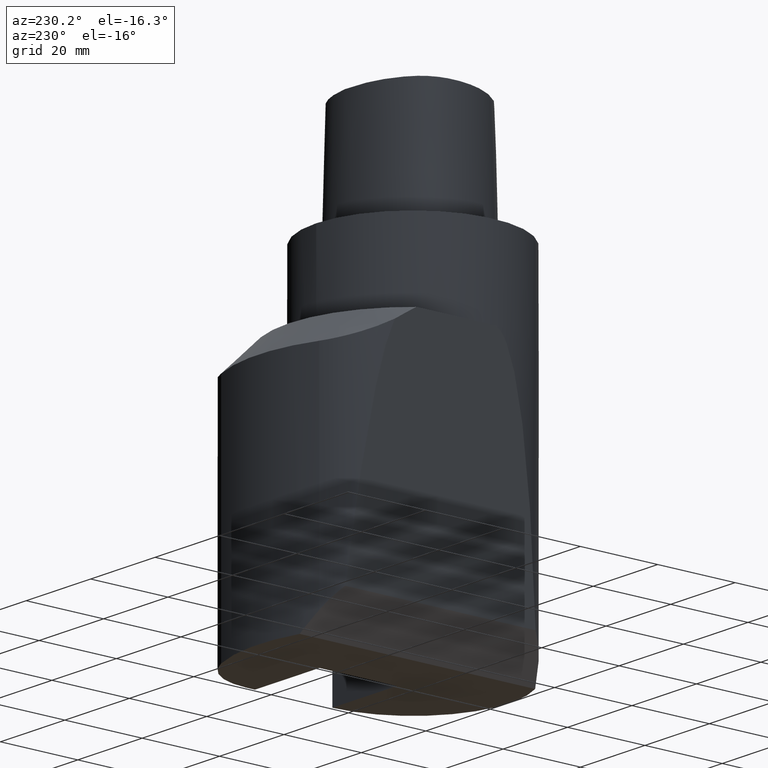
[diagram: clean part render]
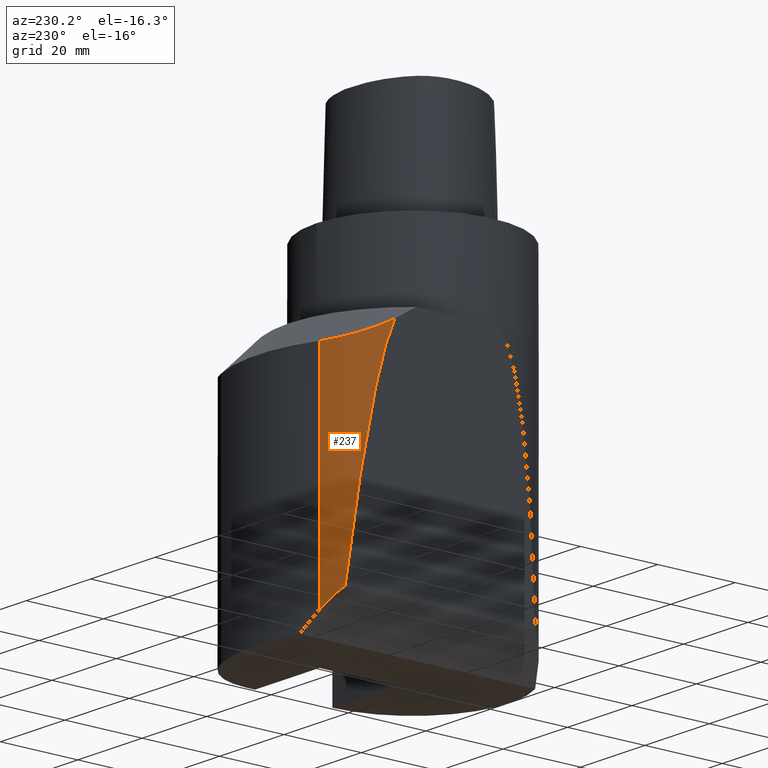
[diagram: same view with one face highlighted and labeled with its STEP entity id]
A machine part, auxiliary view. The second image highlights one B-rep face of the part: STEP entity #237.
In plain terms, the highlighted cylindrical surface (partial cylindrical patch) has radius 16 mm, axis along (-0, 0, 1).
Its self-contained STEP definition (entity closure, byte-faithful):
#95=EDGE_CURVE('240[2]',#263,#264,#265,.T.);
#105=EDGE_CURVE('240[2]',#280,#264,#281,.T.);
#107=EDGE_CURVE('240[2]',#283,#263,#284,.T.);
#164=EDGE_CURVE('240[2]',#302,#366,#367,.T.);
#177=EDGE_CURVE('240[2]',#302,#280,#381,.T.);
#179=EDGE_CURVE('240[2]',#366,#283,#383,.T.);
#237=ADVANCED_FACE('240[2]',(#455),#456,.T.);
#263=VERTEX_POINT('',#475);
#264=VERTEX_POINT('',#476);
#265=LINE('',#477,#478);
#280=VERTEX_POINT('',#497);
#281=ELLIPSE('',#498,22.6274169979687,16.0);
#283=VERTEX_POINT('',#501);
#284=B_SPLINE_CURVE_WITH_KNOTS('',3,(#502,#503,#504,#505,#506,#507),.UNSPECIFIED.,.F.,.F.,(4,2,4),(70.7762130526384,72.555052034394,74.3915191207835),.UNSPECIFIED.);
#302=VERTEX_POINT('',#530);
#366=VERTEX_POINT('',#1118);
#367=LINE('',#1119,#1120);
#381=ELLIPSE('',#1143,183.579411930711,16.0);
#383=B_SPLINE_CURVE_WITH_KNOTS('',3,(#1146,#1147,#1148,#1149,#1150,#1151,#1152,#1153,#1154,#1155,#1156,#1157,#1158,#1159,#1160,#1161),.UNSPECIFIED.,.F.,.F.,(4,3,3,3,3,4),(7.46103710837629,9.74245633401,12.98994177868,15.625256499881,17.4879813303236,19.5629506942959),.UNSPECIFIED.);
#455=FACE_OUTER_BOUND('',#1316,.T.);
#456=CYLINDRICAL_SURFACE('',#1317,16.0);
#475=CARTESIAN_POINT('',(-15.2871730443346,36.9635271627627,-30.0000000000007));
#476=CARTESIAN_POINT('',(-15.287173044864,36.9635271625363,-85.712827113867));
#477=CARTESIAN_POINT('',(-15.287173044864,36.9635271625363,-30.0000000000007));
#478=VECTOR('',#1341,55.7128271138663);
#497=CARTESIAN_POINT('',(-19.8226529999562,34.0331936345336,-81.1773471587751));
#498=AXIS2_PLACEMENT_3D('',#1363,#1364,#1365);
#501=CARTESIAN_POINT('',(-18.5610370443747,35.0785978115278,-29.6865231607127));
#502=CARTESIAN_POINT('',(-18.5610370443747,35.0785978115278,-29.6865231607127));
#503=CARTESIAN_POINT('',(-18.0560013708339,35.4549628842513,-29.7830699383902));
#504=CARTESIAN_POINT('',(-17.5273226016942,35.8025295693035,-29.8577587793696));
#505=CARTESIAN_POINT('',(-16.4277796324231,36.4362664279085,-29.963242269546));
#506=CARTESIAN_POINT('',(-15.8560971737018,36.7200721958078,-29.9925327724046));
#507=CARTESIAN_POINT('',(-15.2871730443339,36.963527162763,-29.9999999999993));
#530=CARTESIAN_POINT('',(-24.7022320764097,25.3068946513365,-25.4035030994543));
#1118=CARTESIAN_POINT('',(-24.7022320764097,25.3068946513365,-25.36437736552));
#1119=CARTESIAN_POINT('',(-24.7022320764097,25.3068946513365,-25.4035030994543));
#1120=VECTOR('',#1426,0.0391257339342976);
#1143=AXIS2_PLACEMENT_3D('',#1441,#1442,#1443);
#1146=CARTESIAN_POINT('',(-24.7022320764097,25.3068946513365,-25.36437736552));
#1147=CARTESIAN_POINT('',(-24.5675224778462,25.9994617537645,-25.7658857757129));
#1148=CARTESIAN_POINT('',(-24.3853392511311,26.690061634299,-26.1472100658409));
#1149=CARTESIAN_POINT('',(-24.1569628271251,27.3669572021426,-26.5035505058783));
#1150=CARTESIAN_POINT('',(-23.8318804816569,28.3304839750545,-27.0107831877838));
#1151=CARTESIAN_POINT('',(-23.4124036950951,29.2661572440483,-27.4672102775455));
#1152=CARTESIAN_POINT('',(-22.915753640416,30.1422947407211,-27.8640950921179));
#1153=CARTESIAN_POINT('',(-22.512725136461,30.8532749997913,-28.1861647094523));
#1154=CARTESIAN_POINT('',(-22.0325883463073,31.5711248067229,-28.4897294258993));
#1155=CARTESIAN_POINT('',(-21.4788803722163,32.2616177166732,-28.7576351154318));
#1156=CARTESIAN_POINT('',(-21.0875018458279,32.7496802157219,-28.9469994354101));
#1157=CARTESIAN_POINT('',(-20.6595695538378,33.2242177810884,-29.1187224796258));
#1158=CARTESIAN_POINT('',(-20.1998899959844,33.6750557265267,-29.2688799691914));
#1159=CARTESIAN_POINT('',(-19.6878331509787,34.1772635189027,-29.4361468598923));
#1160=CARTESIAN_POINT('',(-19.1403921853456,34.6465867389421,-29.5756313495524));
#1161=CARTESIAN_POINT('',(-18.5610370443747,35.0785978115278,-29.6865231607127));
#1316=EDGE_LOOP('',(#1547,#1548,#1549,#1550,#1551,#1552));
#1317=AXIS2_PLACEMENT_3D('',#1553,#1554,#1555);
#1341=DIRECTION('',(0.0,0.0,-1.0));
#1363=CARTESIAN_POINT('',(-8.99657185664933,22.2520236129044,-92.0034283020812));
#1364=DIRECTION('',(-0.707106781186523,8.65956056235523E-017,-0.707106781186572));
#1365=DIRECTION('',(0.707106781186572,1.73191211247099E-016,-0.707106781186523));
#1426=DIRECTION('',(0.0,0.0,1.0));
#1441=CARTESIAN_POINT('',(-8.99657185664934,22.2520236129044,-204.920020860706));
#1442=DIRECTION('',(-0.996194698091745,1.06735001383234E-017,-0.0871557427476616));
#1443=DIRECTION('',(0.0871557427476616,1.32672164972885E-016,-0.996194698091745));
#1547=ORIENTED_EDGE('',*,*,#179,.T.);
#1548=ORIENTED_EDGE('',*,*,#107,.T.);
#1549=ORIENTED_EDGE('',*,*,#95,.T.);
#1550=ORIENTED_EDGE('',*,*,#105,.F.);
#1551=ORIENTED_EDGE('',*,*,#177,.F.);
#1552=ORIENTED_EDGE('',*,*,#164,.T.);
#1553=CARTESIAN_POINT('',(-8.99657185664934,22.2520236129044,-263.139999954391));
#1554=DIRECTION('',(-0.0,0.0,1.0));
#1555=DIRECTION('',(1.0,0.0,0.0));